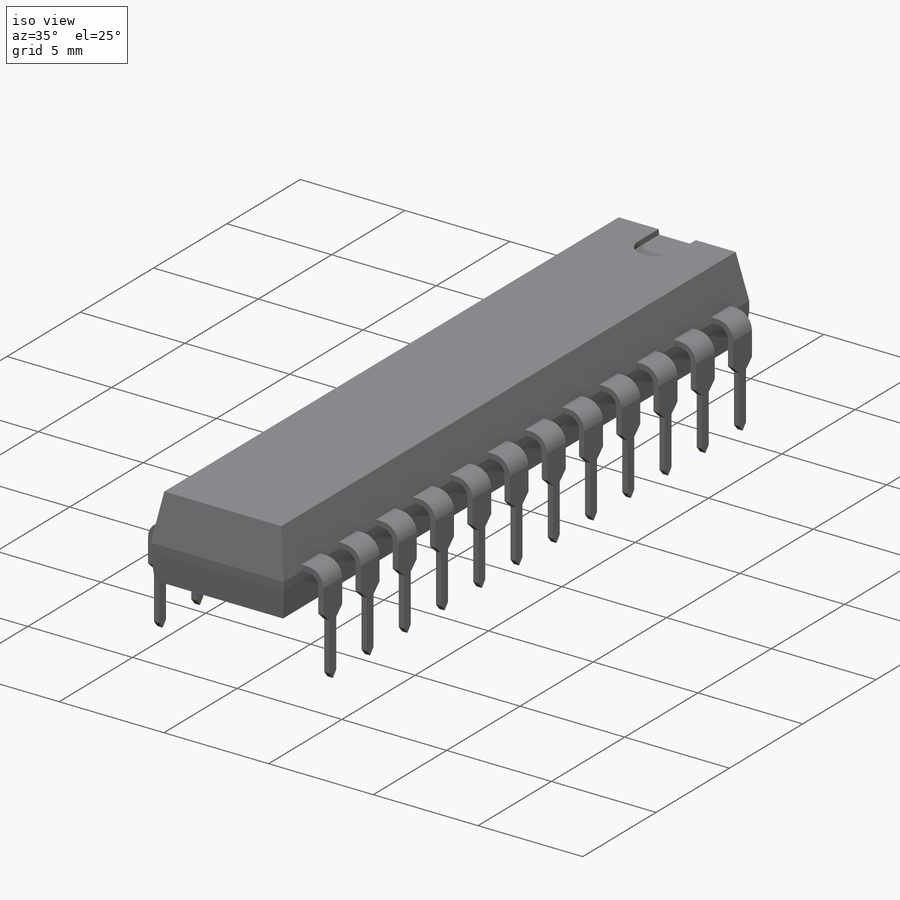
[diagram: iso view]
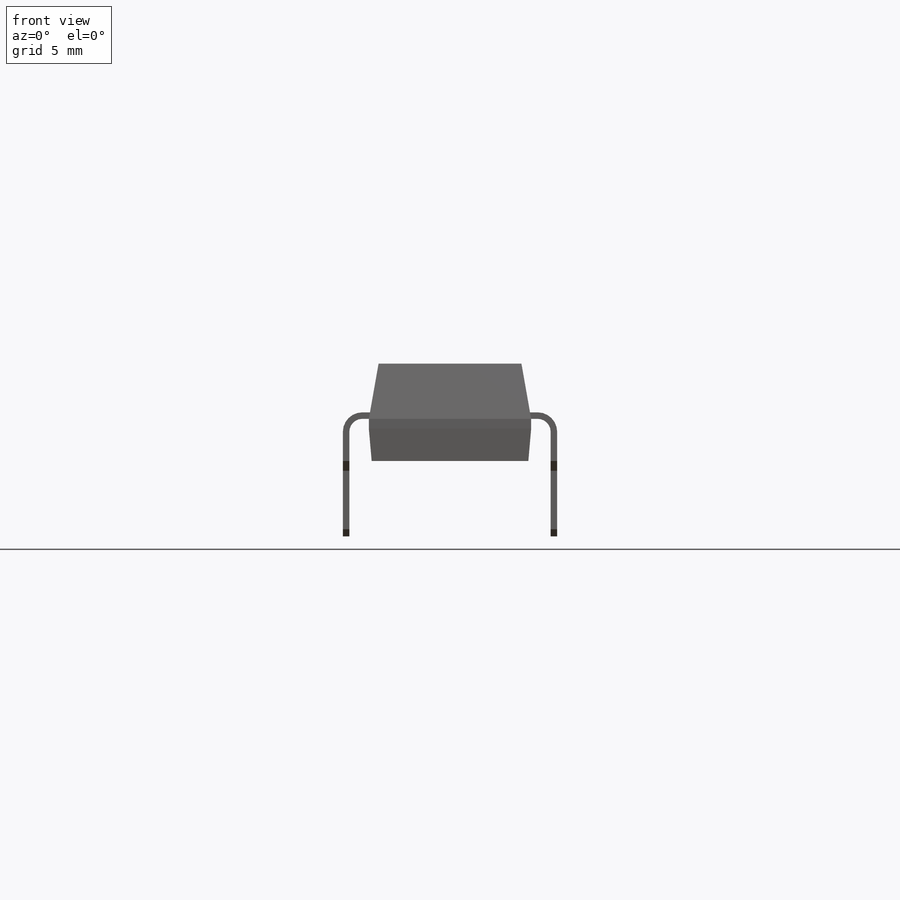
[diagram: front view]
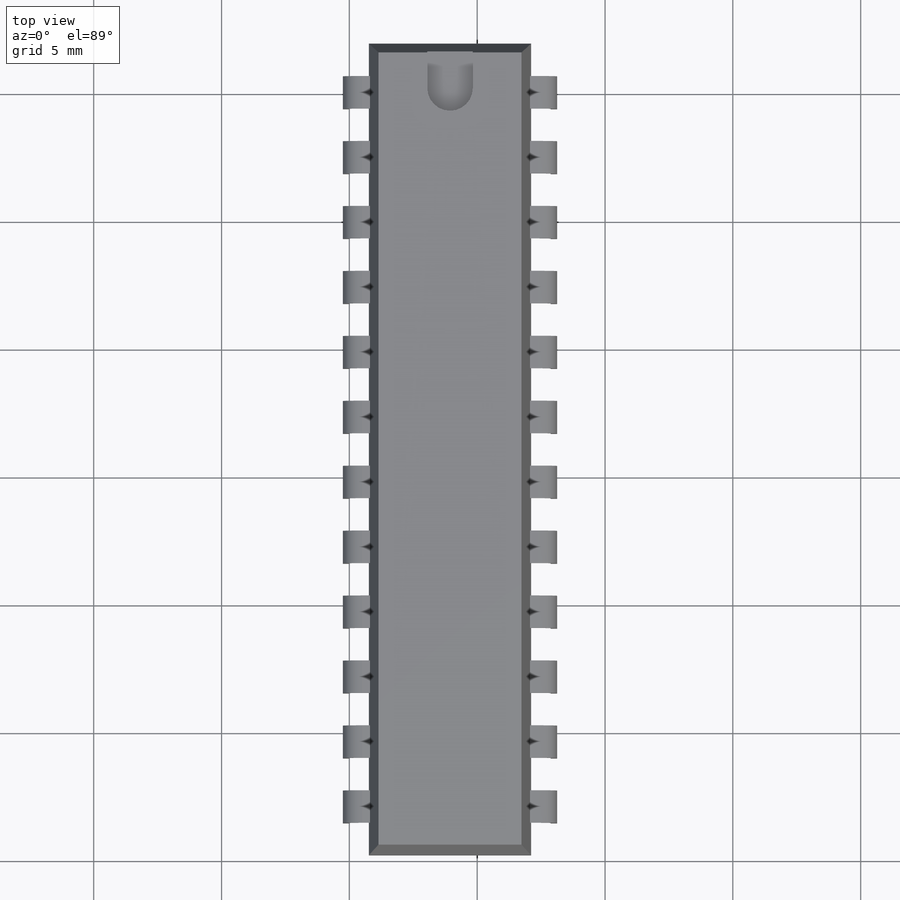
[diagram: top view]
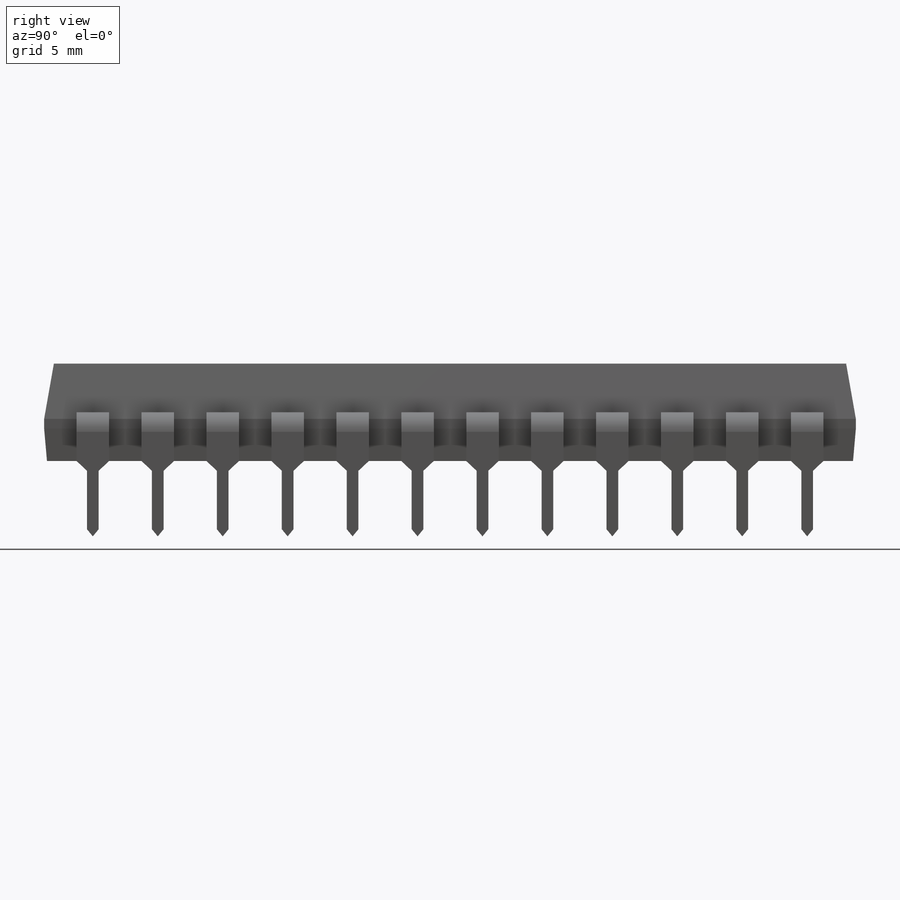
[diagram: right view]
SOLIDWORKS PART (.sldprt)
format: sldprt  version: not decoded by parser v0  size: 1,111,040 bytes
history: native  units: mm
features: sketch x5, plane x2, chamfer x2, cut_extrude x2, mirror x2, material x1, extrude x1, pattern_linear x1 (+12 scaffold rows collapsed)
feature tree (28):
  scaffold x12  (default folders/planes/origin — collapsed)
  material  "Material <not specified>"
  plane  "Plane4"  Offset=0.381mm
  sketch  "Sketch2"  dims[D1=6.35mm D2=31.75mm D3=1.905mm D4=0.762mm]
  extrude  "Base-Extrude"  Depth=3.81mm
  chamfer  "Chamfer1"  Distance=2.159mm Angle=10deg
  chamfer  "Chamfer2"  Distance=1.27mm Angle=5deg
  sketch  "Sketch3"  dims[c1.D2=0.889mm c1.D1=1.778mm c2.D2=1.8034mm c2.D1=1.778mm c3.D2=1.778mm c3.D3=1.778mm c3.D4=3.175mm]
  cut_extrude  "Cut-Extrude1"  Depth=0.254mm
  sketch  "Sketch4"  dims[c1.D1=0.508mm c1.D2=2.5654mm c2.D1=1.27mm c2.D5=0.254mm c2.D6=1.0mm c2.D7=5.0mm]
  sketch  "Sketch5"  dims[D1=0.2286mm D2=2.286mm D3=2.5654mm]
  cut_extrude  "Cut-Extrude2"  [1 undecoded]
  mirror  "Mirror1"
  plane  "Plane5"  Offset=3.175mm
  pattern_linear  "LPattern1"  Count1=12 Count2=1 Spacing1=2.54mm Spacing2=50mm
  mirror  "Mirror2"
  sketch  "Component_Outline"
decode coverage: 9 of 13 modeling features carry decoded parameters
note: 1 parameter value undecoded
note: suppression state not decoded; provenance and decode notes live in map.json
